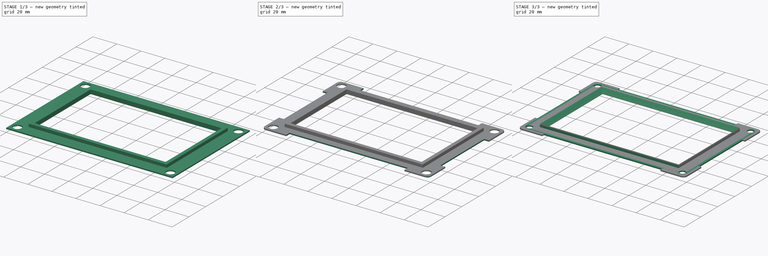
[diagram: build sequence overview — one tinted view per stage of 3, left to right]
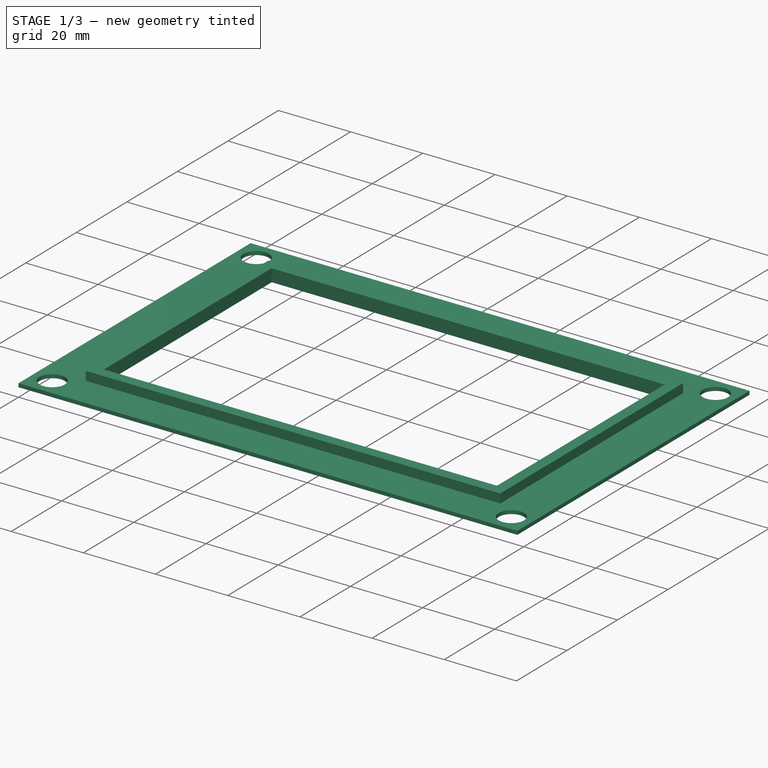
[diagram: stage 1 of 3 — iso view after this stage's code; geometry added in this stage tinted green]
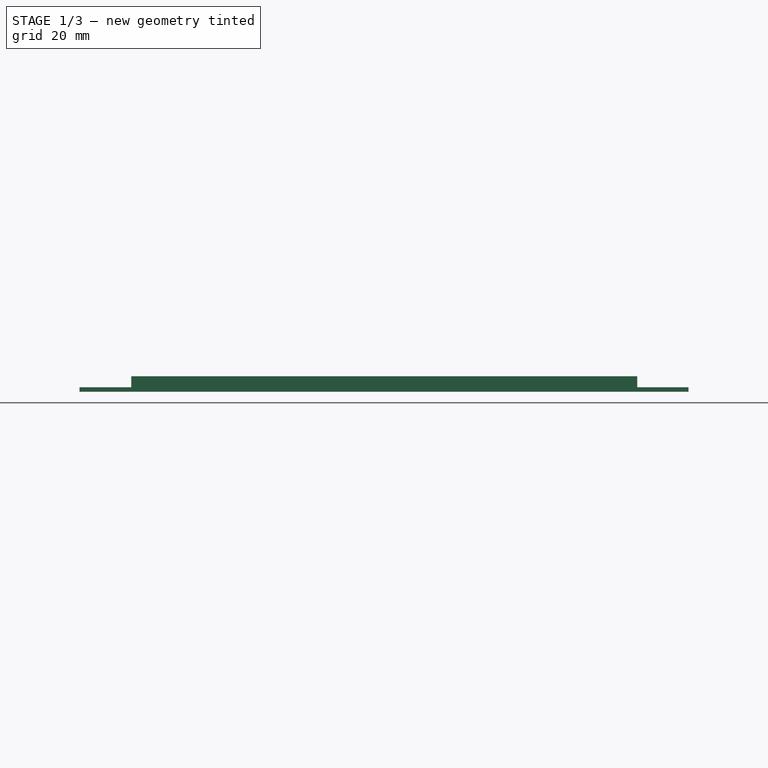
[diagram: stage 1 of 3 — front view after this stage's code; geometry added in this stage tinted green]
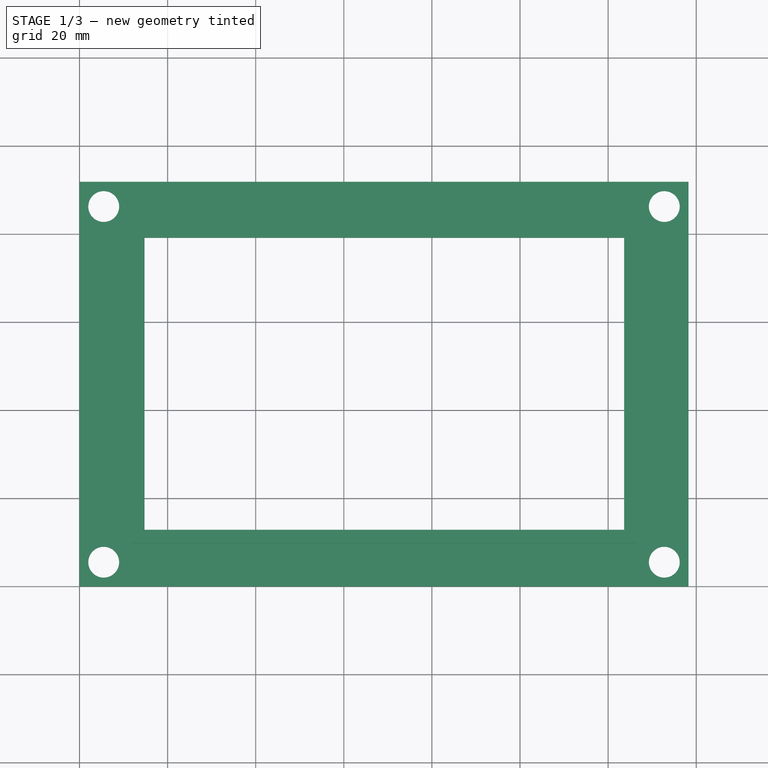
[diagram: stage 1 of 3 — top view after this stage's code; geometry added in this stage tinted green]
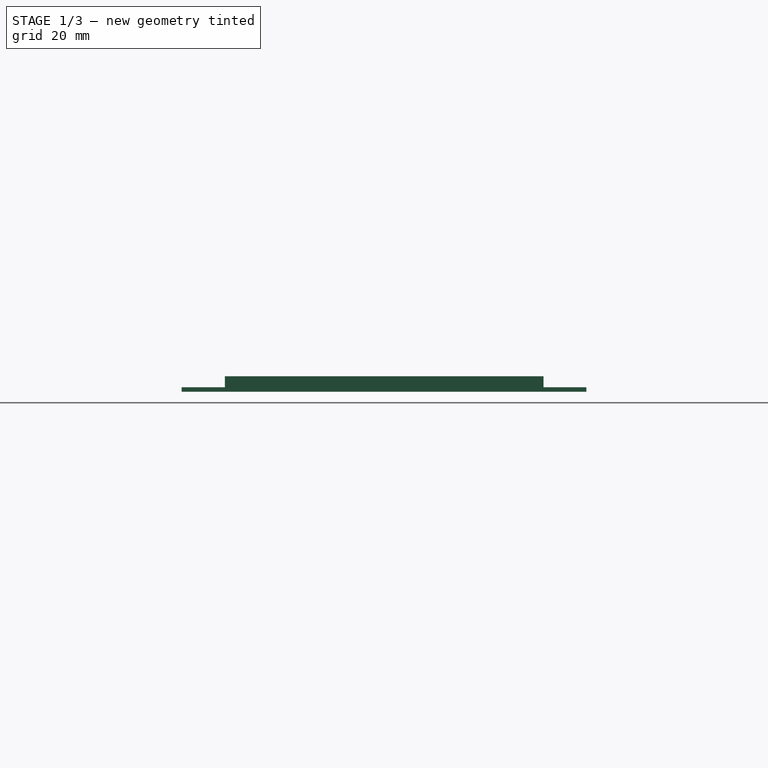
[diagram: stage 1 of 3 — right view after this stage's code; geometry added in this stage tinted green]
FCSTD DOCUMENT  (FreeCAD 0.17R13662 (Git))
Label: LCD_bezel_V0.3
License: CreativeCommons Attribution-ShareAlike
LicenseURL: http://creativecommons.org/licenses/by-sa/4.0/
objects: Sketcher::SketchObject×4, PartDesign::Pocket×3, Part::FeaturePython×1, PartDesign::Pad×1, PartDesign::Fillet×1, PartDesign::Body×1, Part::Chamfer×1
note: 16 computed .brp shape members not serialized (recipe doc carries the construction recipe); baked Part::Feature solids carry a one-line shape summary decoded from their .brp

FEATURE [Sketcher::SketchObject] Sketch
  MapMode = 5
  Support = -> [XY_Plane]
  sketch-geometry (16):
    g0: LineSegment StartX=0 StartY=0 StartZ=0 EndX=138.25 EndY=0 EndZ=0
    g1: LineSegment StartX=138.25 StartY=0 StartZ=0 EndX=138.25 EndY=91.88 EndZ=0
    g2: LineSegment StartX=138.25 StartY=91.88 StartZ=0 EndX=0 EndY=91.88 EndZ=0
    g3: LineSegment StartX=0 StartY=91.88 StartZ=0 EndX=0 EndY=0 EndZ=0
    g4: Circle CenterX=5.5 CenterY=86.25 CenterZ=0 NormalX=0 NormalY=0 NormalZ=1 AngleXU=0 Radius=3.5
    g5: Circle CenterX=132.75 CenterY=5.5 CenterZ=0 NormalX=0 NormalY=0 NormalZ=1 AngleXU=0 Radius=3.5
    g6: Circle CenterX=5.5 CenterY=5.5 CenterZ=0 NormalX=0 NormalY=0 NormalZ=1 AngleXU=0 Radius=3.5
    g7: Circle CenterX=132.75 CenterY=86.25 CenterZ=0 NormalX=0 NormalY=0 NormalZ=1 AngleXU=0 Radius=3.5
    g8: LineSegment [constr] StartX=132.75 StartY=86.25 StartZ=0 EndX=5.5 EndY=86.25 EndZ=0
    g9: LineSegment [constr] StartX=5.5 StartY=86.25 StartZ=0 EndX=5.5 EndY=5.5 EndZ=0
    g10: LineSegment [constr] StartX=5.5 StartY=5.5 StartZ=0 EndX=132.75 EndY=5.5 EndZ=0
    g11: LineSegment [constr] StartX=132.75 StartY=5.5 StartZ=0 EndX=132.75 EndY=86.25 EndZ=0
    g12: LineSegment StartX=14.75 StartY=79.15 StartZ=0 EndX=123.625 EndY=79.15 EndZ=0
    g13: LineSegment StartX=123.625 StartY=79.15 StartZ=0 EndX=123.625 EndY=12.825 EndZ=0
    g14: LineSegment StartX=123.625 StartY=12.825 StartZ=0 EndX=14.75 EndY=12.825 EndZ=0
    g15: LineSegment StartX=14.75 StartY=12.825 StartZ=0 EndX=14.75 EndY=79.15 EndZ=0
  constraints (43):
    c: Coincident(g0,g1)
    c: Coincident(g1,g2)
    c: Coincident(g2,g3)
    c: Coincident(g3,g0)
    c: Horizontal(g0)
    c: Horizontal(g2)
    c: Vertical(g1)
    c: Vertical(g3)
    c: Coincident(g0,g-1)
    c: DistanceX(g2,g2) = 138.25
    c: DistanceY(g1,g1) = 91.88
    c: Coincident(g8,g9)
    c: Coincident(g9,g10)
    c: Coincident(g10,g11)
    c: Coincident(g11,g8)
    c: Horizontal(g8)
    c: Horizontal(g10)
    c: Vertical(g9)
    c: Vertical(g11)
    c: Coincident(g6,g9)
    c: Coincident(g4,g8)
    c: Coincident(g5,g10)
    c: Coincident(g7,g8)
    c: Radius(g4) = 3.5
    c: Equal(g4,g5)
    c: Equal(g4,g6)
    c: Equal(g4,g7)
    c: DistanceX(g6) = 5.5
    c: DistanceY(g6) = 5.5
    c: DistanceY(g9,g9) = 80.75
    c: DistanceX(g10,g10) = 127.25
    c: Coincident(g12,g13)
    c: Coincident(g13,g14)
    c: Coincident(g14,g15)
    c: Coincident(g15,g12)
    c: Horizontal(g12)
    c: Horizontal(g14)
    c: Vertical(g13)
    c: Vertical(g15)
    c: DistanceX(g14) = 14.75
    c: DistanceY(g14) = 12.825
    c: DistanceX(g14,g14) = 108.875
    c: DistanceY(g13,g13) = 66.325
FEATURE [PartDesign::Pad] Pad
  Length = 3.5
  Length2 = 100
  Profile = -> Sketch
  Type = 0
FEATURE [Sketcher::SketchObject] Sketch001
  ExternalGeometry = -> [Pad]
  MapMode = 5
  Placement = pos=(0,0,3.5) rot=(0,0,1;0rad)
  Support = -> [Pad]
  sketch-geometry (8):
    g0: LineSegment StartX=11.75 StartY=82.15 StartZ=0 EndX=126.625 EndY=82.15 EndZ=0
    g1: LineSegment StartX=126.625 StartY=82.15 StartZ=0 EndX=126.625 EndY=9.825 EndZ=0
    g2: LineSegment StartX=126.625 StartY=9.825 StartZ=0 EndX=11.75 EndY=9.825 EndZ=0
    g3: LineSegment StartX=11.75 StartY=9.825 StartZ=0 EndX=11.75 EndY=82.15 EndZ=0
    g4: LineSegment StartX=138.25 StartY=91.88 StartZ=0 EndX=0 EndY=91.88 EndZ=0
    g5: LineSegment StartX=0 StartY=91.88 StartZ=0 EndX=0 EndY=0 EndZ=0
    g6: LineSegment StartX=0 StartY=0 StartZ=0 EndX=138.25 EndY=0 EndZ=0
    g7: LineSegment StartX=138.25 StartY=0 StartZ=0 EndX=138.25 EndY=91.88 EndZ=0
  constraints (22):
    c: Coincident(g0,g1)
    c: Coincident(g1,g2)
    c: Coincident(g2,g3)
    c: Coincident(g3,g0)
    c: Horizontal(g0)
    c: Horizontal(g2)
    c: Vertical(g1)
    c: Vertical(g3)
    c: DistanceX(g-4,g1) = 3
    c: DistanceY(g-4,g1) = -3
    c: DistanceX(g0,g-3) = 3
    c: DistanceY(g0,g-3) = -3
    c: Coincident(g4,g5)
    c: Coincident(g5,g6)
    c: Coincident(g6,g7)
    c: Coincident(g7,g4)
    c: Horizontal(g4)
    c: Horizontal(g6)
    c: Vertical(g5)
    c: Vertical(g7)
    c: Coincident(g5,g-1)
    c: Coincident(g4,g-5)
FEATURE [PartDesign::Pocket] Pocket
  BaseFeature = -> Pad
  Length = 2.5
  Length2 = 100
  Profile = -> Sketch001
  Type = 0
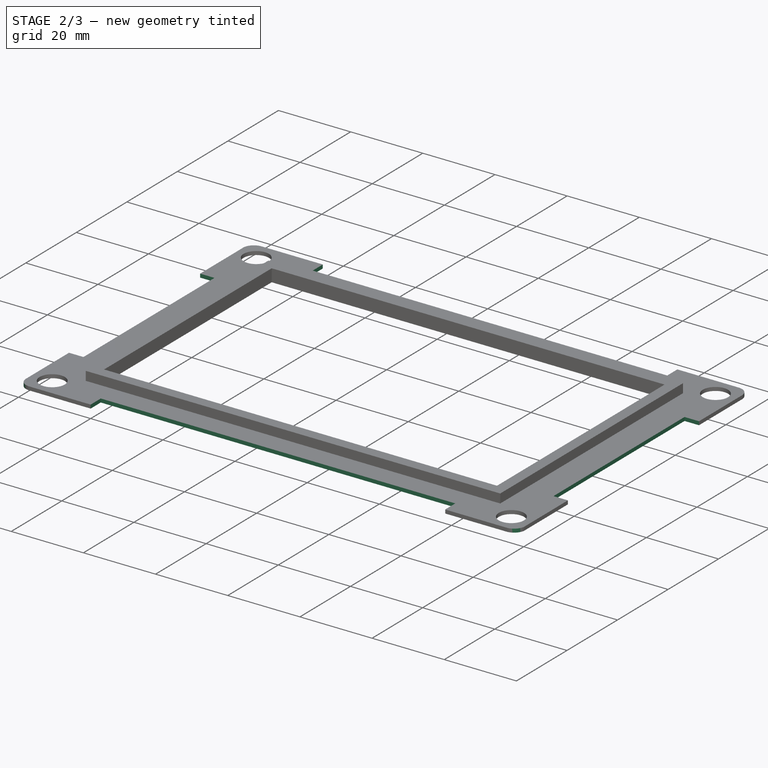
[diagram: stage 2 of 3 — iso view after this stage's code; geometry added in this stage tinted green]
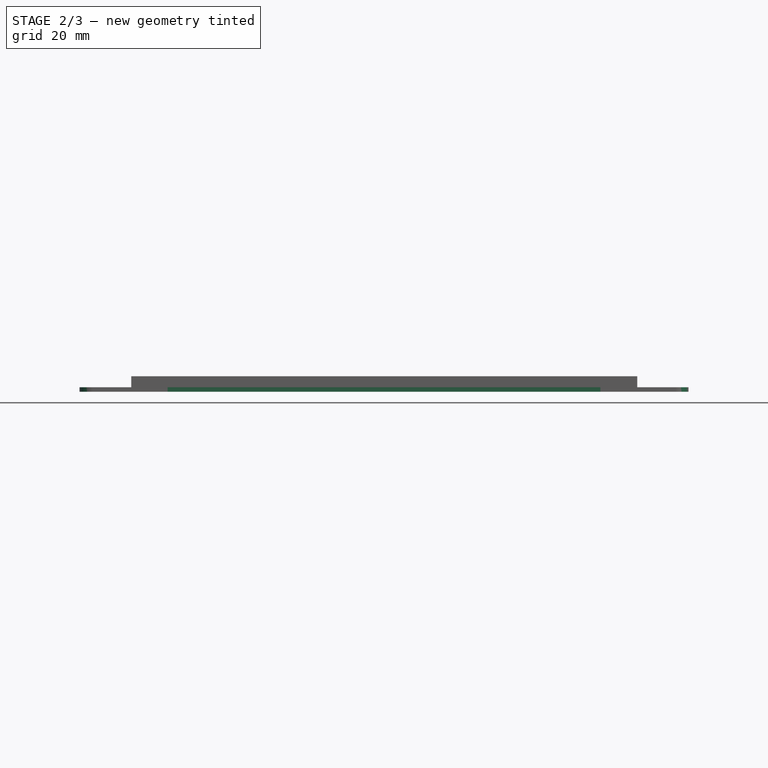
[diagram: stage 2 of 3 — front view after this stage's code; geometry added in this stage tinted green]
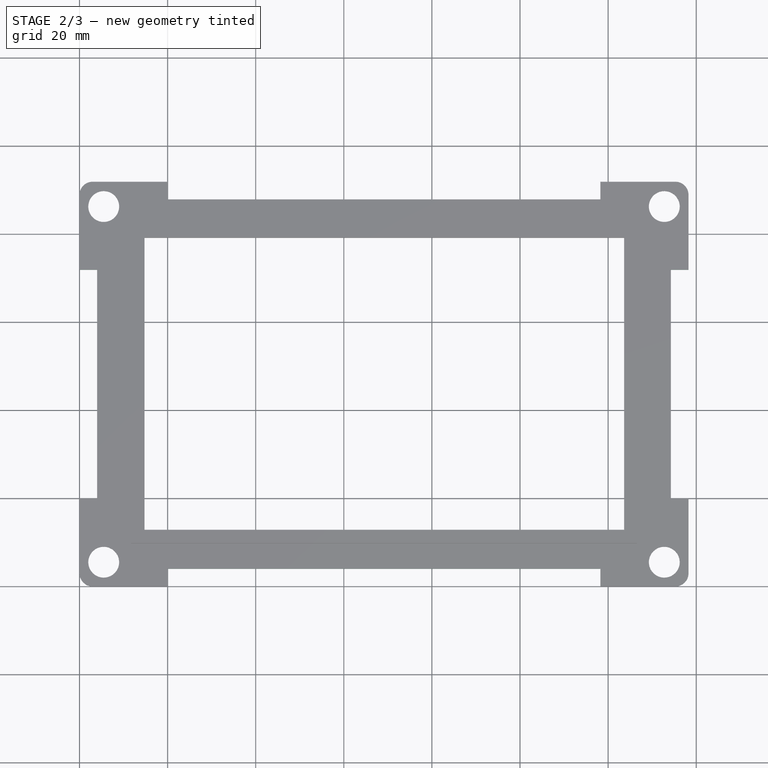
[diagram: stage 2 of 3 — top view after this stage's code; geometry added in this stage tinted green]
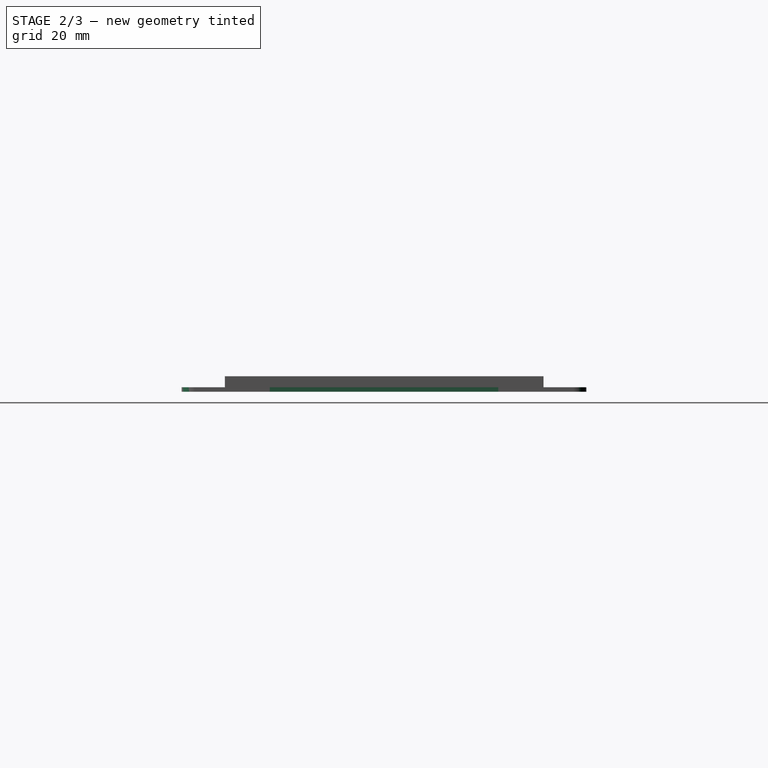
[diagram: stage 2 of 3 — right view after this stage's code; geometry added in this stage tinted green]
FEATURE [Sketcher::SketchObject] Sketch003
  ExternalGeometry = -> [Pocket]
  MapMode = 5
  Placement = pos=(0,0,1) rot=(0,0,1;0rad)
  Support = -> [Pocket]
  sketch-geometry (16):
    g0: LineSegment StartX=20 StartY=91.88 StartZ=0 EndX=118.25 EndY=91.88 EndZ=0
    g1: LineSegment StartX=118.25 StartY=91.88 StartZ=0 EndX=118.25 EndY=87.88 EndZ=0
    g2: LineSegment StartX=118.25 StartY=87.88 StartZ=0 EndX=20 EndY=87.88 EndZ=0
    g3: LineSegment StartX=20 StartY=87.88 StartZ=0 EndX=20 EndY=91.88 EndZ=0
    g4: LineSegment StartX=138.25 StartY=71.88 StartZ=0 EndX=134.25 EndY=71.88 EndZ=0
    g5: LineSegment StartX=134.25 StartY=71.88 StartZ=0 EndX=134.25 EndY=20 EndZ=0
    g6: LineSegment StartX=134.25 StartY=20 StartZ=0 EndX=138.25 EndY=20 EndZ=0
    g7: LineSegment StartX=138.25 StartY=20 StartZ=0 EndX=138.25 EndY=71.88 EndZ=0
    g8: LineSegment StartX=20 StartY=0 StartZ=0 EndX=118.25 EndY=0 EndZ=0
    g9: LineSegment StartX=118.25 StartY=0 StartZ=0 EndX=118.25 EndY=4 EndZ=0
    g10: LineSegment StartX=118.25 StartY=4 StartZ=0 EndX=20 EndY=4 EndZ=0
    g11: LineSegment StartX=20 StartY=4 StartZ=0 EndX=20 EndY=0 EndZ=0
    g12: LineSegment StartX=0 StartY=71.88 StartZ=0 EndX=4 EndY=71.88 EndZ=0
    g13: LineSegment StartX=4 StartY=71.88 StartZ=0 EndX=4 EndY=20 EndZ=0
    g14: LineSegment StartX=4 StartY=20 StartZ=0 EndX=0 EndY=20 EndZ=0
    g15: LineSegment StartX=0 StartY=20 StartZ=0 EndX=0 EndY=71.88 EndZ=0
  constraints (48):
    c: Coincident(g0,g1)
    c: Coincident(g1,g2)
    c: Coincident(g2,g3)
    c: Coincident(g3,g0)
    c: Horizontal(g0)
    c: Horizontal(g2)
    c: Vertical(g1)
    c: Vertical(g3)
    c: Coincident(g4,g5)
    c: Coincident(g5,g6)
    c: Coincident(g6,g7)
    c: Coincident(g7,g4)
    c: Horizontal(g4)
    c: Horizontal(g6)
    c: Vertical(g5)
    c: Vertical(g7)
    c: Coincident(g8,g9)
    c: Coincident(g9,g10)
    c: Coincident(g10,g11)
    c: Coincident(g11,g8)
    c: Horizontal(g8)
    c: Horizontal(g10)
    c: Vertical(g9)
    c: Vertical(g11)
    c: Coincident(g12,g13)
    c: Coincident(g13,g14)
    c: Coincident(g14,g15)
    c: Coincident(g15,g12)
    c: Horizontal(g12)
    c: Horizontal(g14)
    c: Vertical(g13)
    c: Vertical(g15)
    c: PointOnObject(g14,g-2)
    c: PointOnObject(g8,g-1)
    c: PointOnObject(g4,g-4)
    c: PointOnObject(g0,g-3)
    c: DistanceX(g-1,g8) = 20
    c: DistanceX(g8,g-4) = 20
    c: DistanceY(g14) = 20
    c: DistanceY(g12,g-3) = 20
    c: DistanceX(g0,g-4) = 20
    c: DistanceX(g-3,g0) = 20
    c: DistanceY(g4,g-4) = 20
    c: Equal(g5,g13)
    c: Equal(g11,g14)
    c: Equal(g14,g3)
    c: Equal(g3,g4)
    c: DistanceX(g6,g6) = 4
FEATURE [PartDesign::Pocket] Pocket001
  BaseFeature = -> Pocket
  Length = 5
  Length2 = 100
  Profile = -> Sketch003
  Type = 0
FEATURE [Sketcher::SketchObject] Sketch002
  ExternalGeometry = -> [Pocket001]
  MapMode = 5
  Placement = pos=(0,0,0) rot=(1,0,0;3.14159rad)
  sketch-geometry (20):
    g0: LineSegment [constr] StartX=5.5 StartY=-5.5 StartZ=0 EndX=5.5 EndY=0 EndZ=0
    g1: LineSegment [constr] StartX=132.75 StartY=-5.5 StartZ=0 EndX=132.75 EndY=0 EndZ=0
    g2: LineSegment [constr] StartX=132.75 StartY=-86.25 StartZ=0 EndX=132.75 EndY=-92.7496 EndZ=0
    g3: LineSegment [constr] StartX=5.5 StartY=-86.25 StartZ=0 EndX=5.5 EndY=-92.7496 EndZ=0
    g4: LineSegment StartX=5.45 StartY=0 StartZ=0 EndX=5.55 EndY=0 EndZ=0
    g5: LineSegment StartX=5.55 StartY=0 StartZ=0 EndX=5.55 EndY=-2.00036 EndZ=0
    g6: LineSegment StartX=5.55 StartY=-2.00036 StartZ=0 EndX=5.45 EndY=-2.00036 EndZ=0
    g7: LineSegment StartX=5.45 StartY=-2.00036 StartZ=0 EndX=5.45 EndY=0 EndZ=0
    g8: LineSegment StartX=132.7 StartY=0 StartZ=0 EndX=132.8 EndY=0 EndZ=0
    g9: LineSegment StartX=132.8 StartY=0 StartZ=0 EndX=132.8 EndY=-2.00036 EndZ=0
    g10: LineSegment StartX=132.8 StartY=-2.00036 StartZ=0 EndX=132.7 EndY=-2.00036 EndZ=0
    g11: LineSegment StartX=132.7 StartY=-2.00036 StartZ=0 EndX=132.7 EndY=0 EndZ=0
    g12: LineSegment StartX=132.7 StartY=-89.7496 StartZ=0 EndX=132.8 EndY=-89.7496 EndZ=0
    g13: LineSegment StartX=132.8 StartY=-89.7496 StartZ=0 EndX=132.8 EndY=-92.7496 EndZ=0
    g14: LineSegment StartX=132.8 StartY=-92.7496 StartZ=0 EndX=132.7 EndY=-92.7496 EndZ=0
    g15: LineSegment StartX=132.7 StartY=-92.7496 StartZ=0 EndX=132.7 EndY=-89.7496 EndZ=0
    g16: LineSegment StartX=5.45 StartY=-89.7496 StartZ=0 EndX=5.55 EndY=-89.7496 EndZ=0
    g17: LineSegment StartX=5.55 StartY=-89.7496 StartZ=0 EndX=5.55 EndY=-92.7496 EndZ=0
    g18: LineSegment StartX=5.55 StartY=-92.7496 StartZ=0 EndX=5.45 EndY=-92.7496 EndZ=0
    g19: LineSegment StartX=5.45 StartY=-92.7496 StartZ=0 EndX=5.45 EndY=-89.7496 EndZ=0
  constraints (61):
    c: PointOnObject(g0,g-1)
    c: Vertical(g0)
    c: PointOnObject(g1,g-1)
    c: Vertical(g1)
    c: Vertical(g2)
    c: Vertical(g3)
    c: Coincident(g4,g5)
    c: Coincident(g5,g6)
    c: Coincident(g6,g7)
    c: Coincident(g7,g4)
    c: Horizontal(g4)
    c: Horizontal(g6)
    c: Vertical(g5)
    c: Vertical(g7)
    c: PointOnObject(g4,g-1)
    c: Symmetric(g6,g5,g0)
    c: Distance(g4) = 0.1
    c: Coincident(g8,g9)
    c: Coincident(g9,g10)
    c: Coincident(g10,g11)
    c: Coincident(g11,g8)
    c: Horizontal(g8)
    c: Horizontal(g10)
    c: Vertical(g9)
    c: Vertical(g11)
    c: PointOnObject(g8,g-1)
    c: Symmetric(g10,g9,g1)
    c: Distance(g8) = 0.1
    c: Coincident(g12,g13)
    c: Coincident(g13,g14)
    c: Coincident(g14,g15)
    c: Coincident(g15,g12)
    c: Horizontal(g12)
    c: Horizontal(g14)
    c: Vertical(g13)
    c: Vertical(g15)
    c: Symmetric(g14,g13,g2)
    c: Distance(g12) = 0.1
    c: Coincident(g16,g17)
    c: Coincident(g17,g18)
    c: Coincident(g18,g19)
    c: Coincident(g19,g16)
    c: Horizontal(g16)
    c: Horizontal(g18)
    c: Vertical(g17)
    c: Vertical(g19)
    c: Symmetric(g18,g17,g3)
    c: Distance(g16) = 0.1
    c: Coincident(g1,g-7)
    c: Coincident(g0,g-3)
    c: Coincident(g3,g-5)
    c: Coincident(g2,g-6)
    c: Equal(g15,g17)
    c: PointOnObject(g16,g-5)
    c: PointOnObject(g12,g-6)
    c: PointOnObject(g3,g18)
    c: DistanceY(g17,g17) = 3
    c: PointOnObject(g2,g14)
    c: DistanceY(g13,g13) = 3
    c: PointOnObject(g10,g-7)
    c: PointOnObject(g6,g-3)
FEATURE [PartDesign::Pocket] Pocket002
  BaseFeature = -> Pocket001
  Length = 0.4
  Length2 = 100
  Profile = -> Sketch002
  Type = 0
FEATURE [PartDesign::Fillet] Fillet
  Base = -> Pocket002 [Edge8,Edge116,Edge105,Edge88]
  BaseFeature = -> Pocket002
  Radius = 3
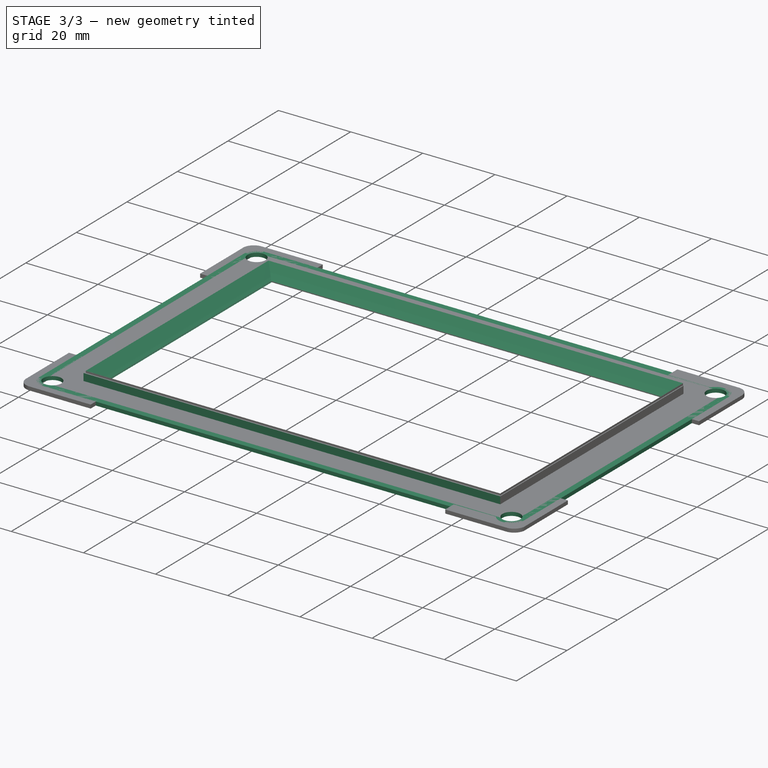
[diagram: stage 3 of 3 — iso view after this stage's code; geometry added in this stage tinted green]
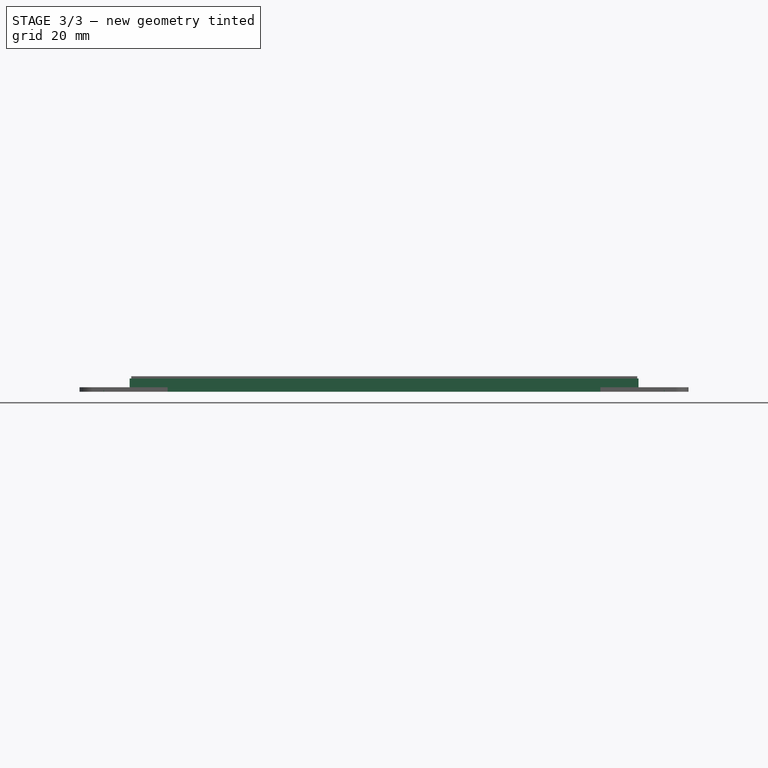
[diagram: stage 3 of 3 — front view after this stage's code; geometry added in this stage tinted green]
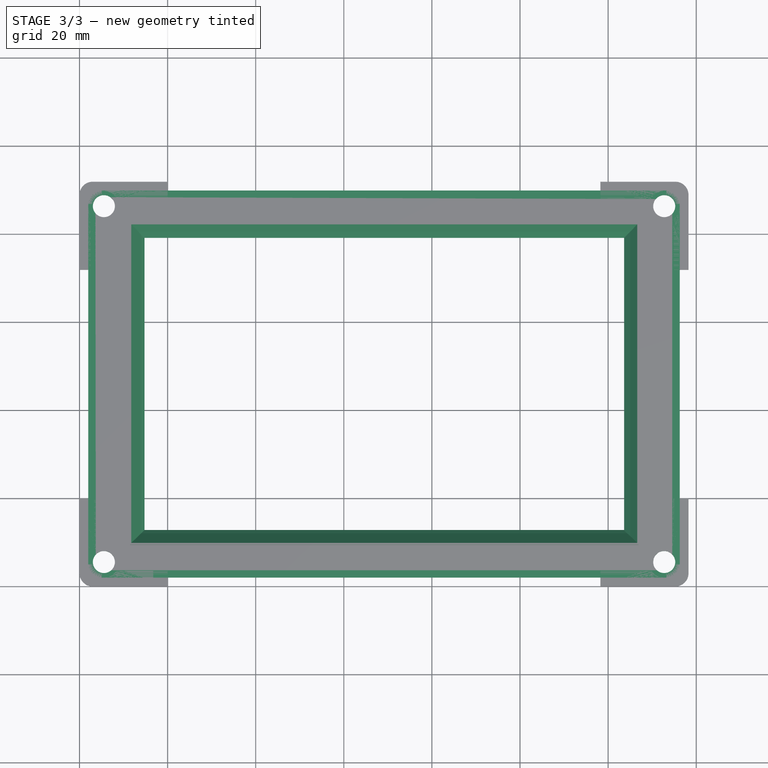
[diagram: stage 3 of 3 — top view after this stage's code; geometry added in this stage tinted green]
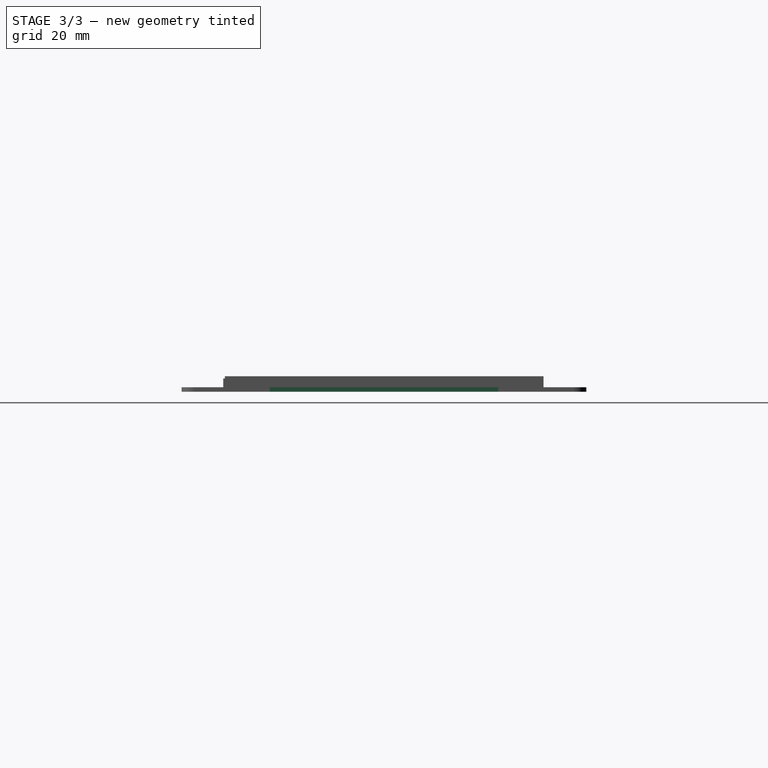
[diagram: stage 3 of 3 — right view after this stage's code; geometry added in this stage tinted green]
FEATURE [Part::FeaturePython] touchscreen_bezel_01  # a2plus imported part (geometry in sourceFile) (typed FeaturePython)
  Placement = pos=(2,2,0) rot=(0,0,1;0rad)
  fixedPosition = true
  sourceFile = <userpath>/Projects/taz-quiver/Production_parts/Printed_parts/Control_box/LCD/touchscreen_bezel.fcstd
  timeLastImport = 1.52536e+09
  updateColors = true
FEATURE [PartDesign::Body] Body
  Group = -> [Sketch,Pad,Sketch001,Pocket,Sketch002,Sketch003,Pocket001,Pocket002,Fillet]
  Origin = -> Origin
  Tip = -> Fillet
FEATURE [Part::Chamfer] Chamfer
  Base = -> Fillet
  Edges = 4 edges: [Edge143 r1=3.49 r2=2.99,Edge145 r1=3.49 r2=2.99,Edge147 r1=3.49 r2=2.99,Edge148 r1=3.49 r2=2.99]
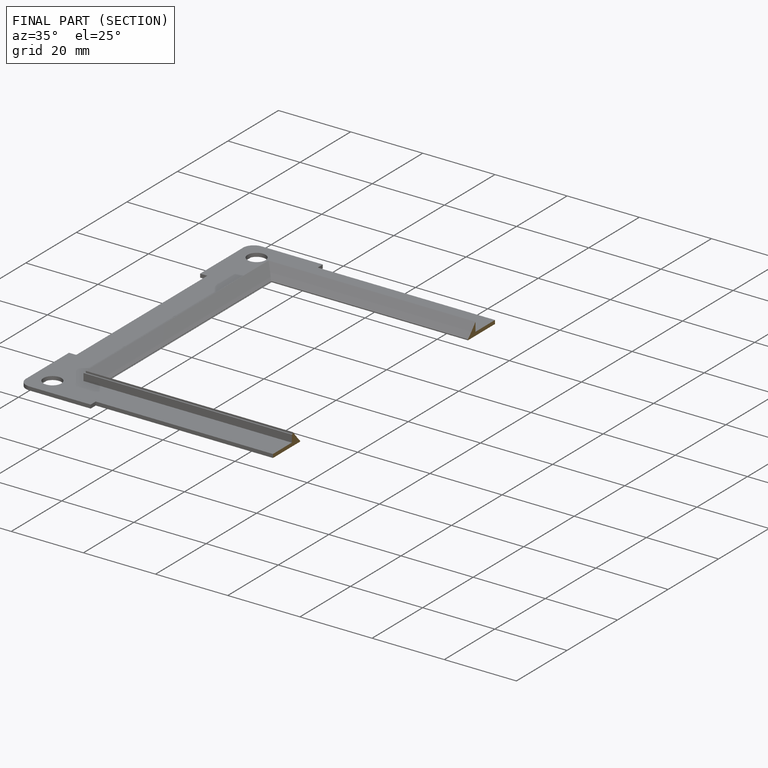
[diagram: finished part — half-section view (interior)]
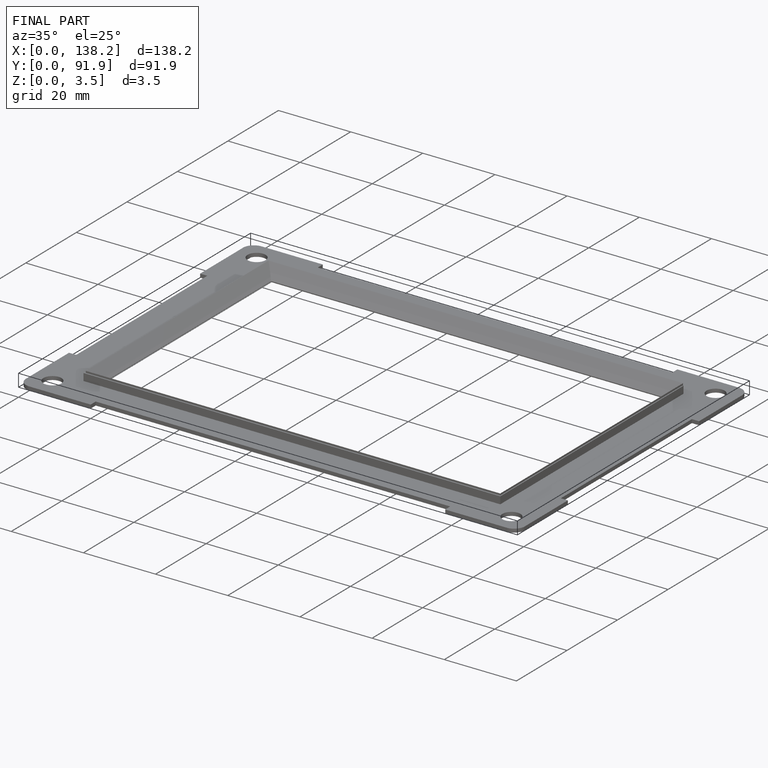
[diagram: finished part — iso view with bounding-box wireframe]
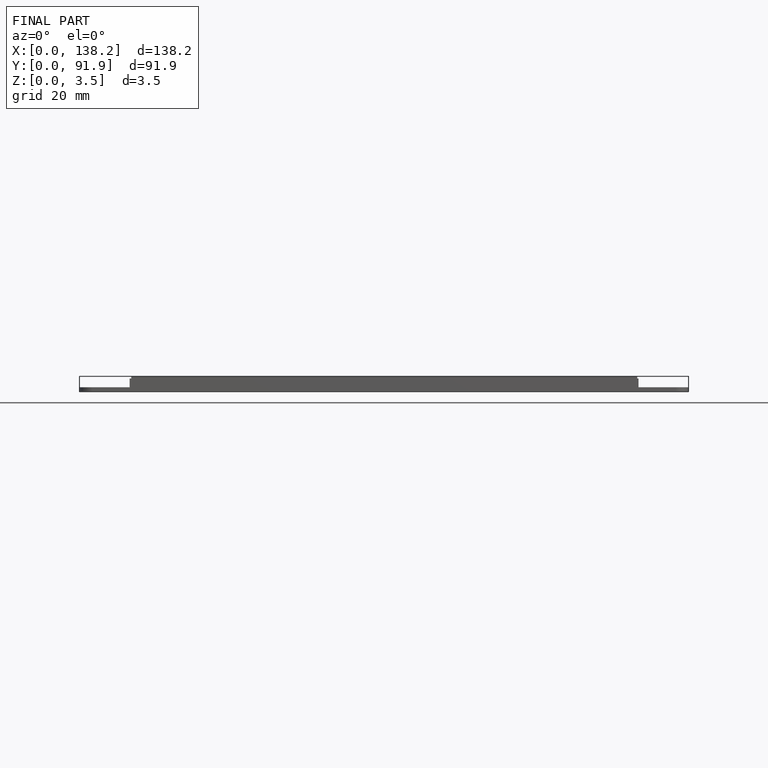
[diagram: finished part — front view with bounding-box wireframe]
